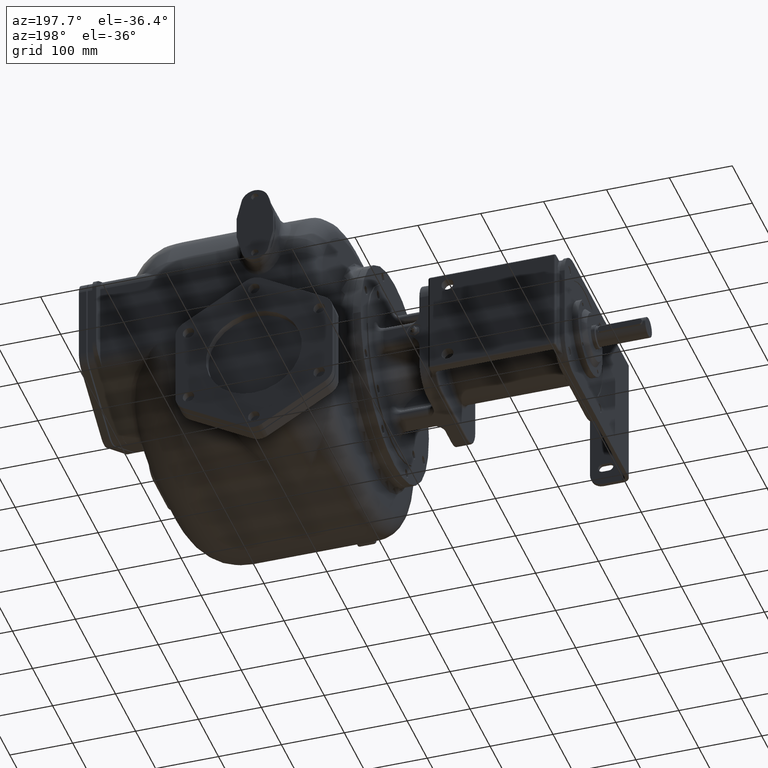
[diagram: clean part render]
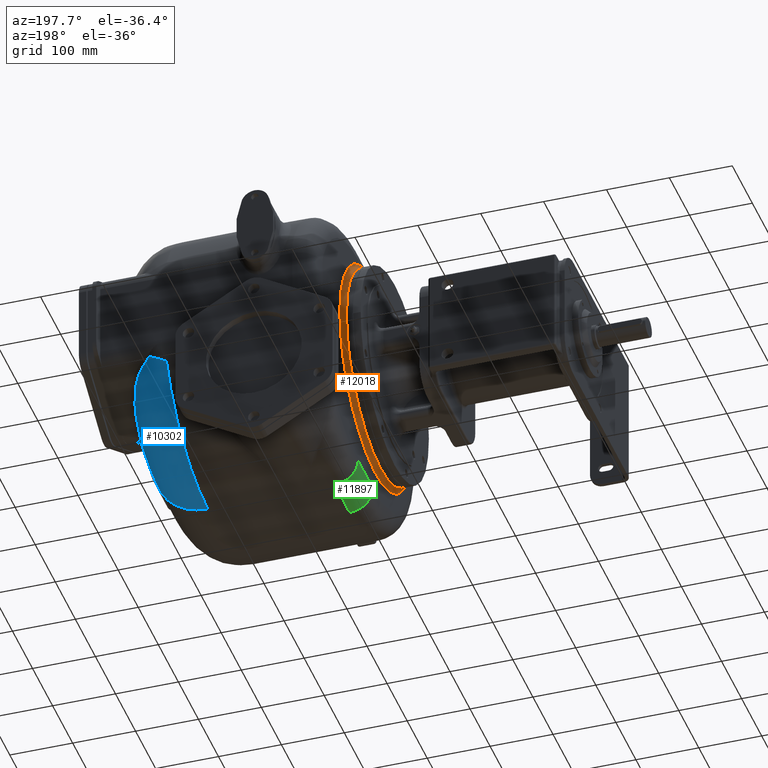
[diagram: same view with three faces highlighted in distinct colors, each labeled with its STEP entity id]
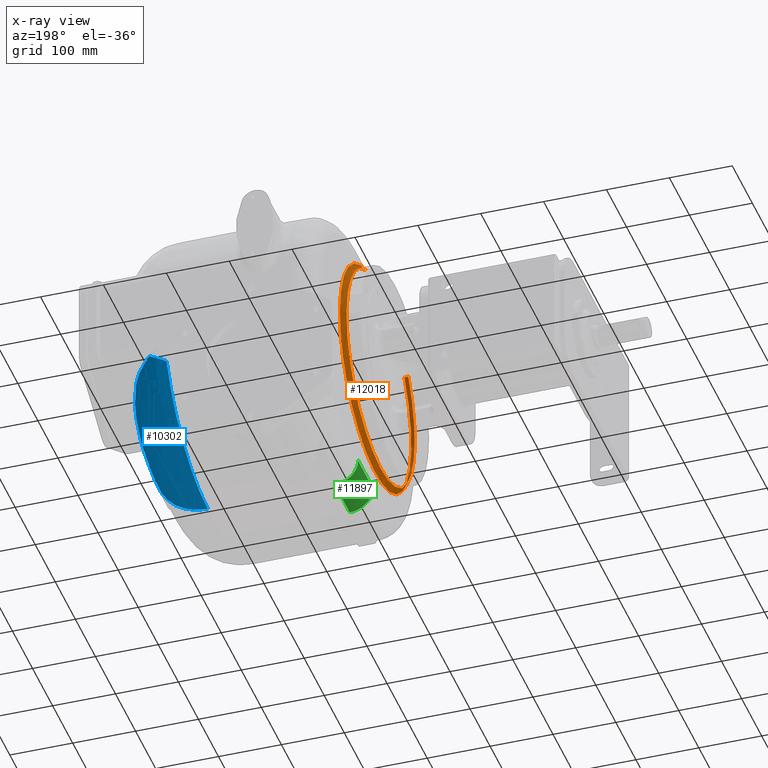
[diagram: x-ray of the same camera — body ghosted, the three highlighted faces saturated]
A machine part, auxiliary view with three faces highlighted in distinct colors.
The next image is the same camera in x-ray (body ghosted, the three faces saturated) — at least one of them is partly hidden behind the body in this view.
Their STEP definitions:

[orange] entity #12018 — the highlighted toroidal blend (fillet) surface has major radius 178 mm and minor (blend) radius 8 mm.
#3476=CARTESIAN_POINT('',(-8.699999958108E1,8.563733848388E1,1.041317387199E2));
#3536=CARTESIAN_POINT('',(-9.499996702928E1,8.563770566925E1,1.041316126528E2));
#3537=DIRECTION('',(3.031910061304E-7,5.850103059168E-1,8.110258577697E-1));
#3538=DIRECTION('',(9.999999988728E-1,-3.868475017217E-5,2.753030167005E-5));
#3539=AXIS2_PLACEMENT_3D('',#3536,#3537,#3538);
#3541=CARTESIAN_POINT('',(-8.7E1,2.3E2,0.E0));
#3542=DIRECTION('',(1.E0,0.E0,0.E0));
#3543=DIRECTION('',(0.E0,-8.110273238747E-1,5.850082733848E-1));
#3544=AXIS2_PLACEMENT_3D('',#3541,#3542,#3543);
#3546=CARTESIAN_POINT('',(-9.5E1,3.015192281836E2,1.630000000001E2));
#3547=DIRECTION('',(0.E0,9.157303370791E-1,-4.017934167616E-1));
#3548=DIRECTION('',(1.E0,-3.979039320257E-13,-9.130474154517E-13));
#3549=AXIS2_PLACEMENT_3D('',#3546,#3547,#3548);
#3578=CARTESIAN_POINT('',(-9.499999999988E1,2.983048766860E2,1.556741478146E2));
#3584=CARTESIAN_POINT('',(-9.5E1,2.3E2,0.E0));
#3585=DIRECTION('',(-1.E0,0.E0,0.E0));
#3586=DIRECTION('',(0.E0,4.017934167627E-1,9.157303370787E-1));
#3587=AXIS2_PLACEMENT_3D('',#3584,#3585,#3586);
#3626=CARTESIAN_POINT('',(-8.700001635781E1,3.015192281841E2,1.629999999998E2));
#3638=CARTESIAN_POINT('',(-9.5E1,2.3E2,0.E0));
#3639=DIRECTION('',(-1.E0,0.E0,0.E0));
#3640=DIRECTION('',(0.E0,0.E0,-1.E0));
#3641=AXIS2_PLACEMENT_3D('',#3638,#3639,#3640);
#7930=CARTESIAN_POINT('',(-9.5E1,2.3E2,-1.7E2));
#7931=CARTESIAN_POINT('',(-9.5E1,9.212560377855E1,9.945175145049E1));
#7932=VERTEX_POINT('',#7930);
#7933=VERTEX_POINT('',#7931);
#7934=VERTEX_POINT('',#3476);
#7939=VERTEX_POINT('',#3626);
#7940=VERTEX_POINT('',#3578);
#12003=CARTESIAN_POINT('',(-9.5E1,2.3E2,0.E0));
#12004=DIRECTION('',(1.E0,0.E0,0.E0));
#12005=DIRECTION('',(0.E0,3.866641914872E-1,9.222205826274E-1));
#12006=AXIS2_PLACEMENT_3D('',#12003,#12004,#12005);
#12007=TOROIDAL_SURFACE('',#12006,1.78E2,8.E0);
#12009=ORIENTED_EDGE('',*,*,#12008,.T.);
#12011=ORIENTED_EDGE('',*,*,#12010,.T.);
#12012=ORIENTED_EDGE('',*,*,#11994,.F.);
#12013=ORIENTED_EDGE('',*,*,#10870,.T.);
#12015=ORIENTED_EDGE('',*,*,#12014,.T.);
#12016=EDGE_LOOP('',(#12009,#12011,#12012,#12013,#12015));
#12017=FACE_OUTER_BOUND('',#12016,.F.);
#12018=ADVANCED_FACE('',(#12017),#12007,.F.);
#3540=CIRCLE('',#3539,7.999982928666E0);
#3545=CIRCLE('',#3544,1.78E2);
#3550=CIRCLE('',#3549,8.E0);
#3588=CIRCLE('',#3587,1.7E2);
#3642=CIRCLE('',#3641,1.7E2);
#10870=EDGE_CURVE('',#7934,#7939,#3545,.T.);
#11994=EDGE_CURVE('',#7934,#7933,#3540,.T.);
#12008=EDGE_CURVE('',#7940,#7932,#3588,.T.);
#12010=EDGE_CURVE('',#7932,#7933,#3642,.T.);
#12014=EDGE_CURVE('',#7939,#7940,#3550,.T.);

[blue] entity #10302 — the highlighted toroidal blend (fillet) surface has major radius 144 mm and minor (blend) radius 82 mm.
#949=CARTESIAN_POINT('',(2.34E2,3.17E2,-2.6E1));
#950=DIRECTION('',(1.E0,0.E0,0.E0));
#951=DIRECTION('',(0.E0,0.E0,-1.E0));
#952=AXIS2_PLACEMENT_3D('',#949,#950,#951);
#1452=CARTESIAN_POINT('',(1.911034203071E2,5.150546779042E2,-1.123892390667E2));
#1453=CARTESIAN_POINT('',(1.907547934305E2,5.153369368751E2,-1.122152137512E2));
#1454=CARTESIAN_POINT('',(1.900613327276E2,5.158943086068E2,-1.118594713650E2));
#1455=CARTESIAN_POINT('',(1.890314324568E2,5.167108349939E2,-1.113020240025E2));
#1456=CARTESIAN_POINT('',(1.880179980110E2,5.175039397866E2,-1.107242357911E2));
#1457=CARTESIAN_POINT('',(1.870253755134E2,5.182716165895E2,-1.101285429822E2));
#1458=CARTESIAN_POINT('',(1.860579938509E2,5.190117860961E2,-1.095180532042E2));
#1459=CARTESIAN_POINT('',(1.851216870185E2,5.197216392892E2,-1.088966709733E2));
#1460=CARTESIAN_POINT('',(1.842230061062E2,5.203978070389E2,-1.082697535603E2));
#1461=CARTESIAN_POINT('',(1.833664339873E2,5.210387322629E2,-1.076413711747E2));
#1462=CARTESIAN_POINT('',(1.825551290140E2,5.216436241125E2,-1.070155113200E2));
#1463=CARTESIAN_POINT('',(1.817924743787E2,5.222116321566E2,-1.063962360389E2));
#1464=CARTESIAN_POINT('',(1.810816870842E2,5.227416352610E2,-1.057886629182E2));
#1465=CARTESIAN_POINT('',(1.804226455881E2,5.232350451906E2,-1.051948903829E2));
#1466=CARTESIAN_POINT('',(1.798138542639E2,5.236937752875E2,-1.046165331089E2));
#1467=CARTESIAN_POINT('',(1.794405414320E2,5.239777910006E2,-1.042420073031E2));
#1468=CARTESIAN_POINT('',(1.792618785512E2,5.241144809531E2,-1.040579082588E2));
#1470=CARTESIAN_POINT('',(1.792618785512E2,5.241144809531E2,-1.040579082588E2));
#1471=CARTESIAN_POINT('',(1.787517320665E2,5.241914862596E2,-1.043635130473E2));
#1472=CARTESIAN_POINT('',(1.777277821546E2,5.243342060842E2,-1.049734544954E2));
#1473=CARTESIAN_POINT('',(1.761816751219E2,5.245145192246E2,-1.058838914955E2));
#1474=CARTESIAN_POINT('',(1.746249898997E2,5.246610710028E2,-1.067896430813E2));
#1475=CARTESIAN_POINT('',(1.730577133129E2,5.247737888686E2,-1.076905344702E2));
#1476=CARTESIAN_POINT('',(1.714800973792E2,5.248522838943E2,-1.085868392078E2));
#1477=CARTESIAN_POINT('',(1.698917777527E2,5.248966226593E2,-1.094780076198E2));
#1478=CARTESIAN_POINT('',(1.682936179634E2,5.249067093845E2,-1.103630434251E2));
#1479=CARTESIAN_POINT('',(1.666868971768E2,5.248825508555E2,-1.112406434245E2));
#1480=CARTESIAN_POINT('',(1.650728330836E2,5.248242104588E2,-1.121096165244E2));
#1481=CARTESIAN_POINT('',(1.634523749133E2,5.247318860166E2,-1.129687410973E2));
#1482=CARTESIAN_POINT('',(1.618267466800E2,5.246055158390E2,-1.138174593695E2));
#1483=CARTESIAN_POINT('',(1.601969536343E2,5.244450368605E2,-1.146554535801E2));
#1484=CARTESIAN_POINT('',(1.585634257832E2,5.242504895832E2,-1.154823690852E2));
#1485=CARTESIAN_POINT('',(1.569269542710E2,5.240216737506E2,-1.162983908194E2));
#1486=CARTESIAN_POINT('',(1.552871955703E2,5.237592691729E2,-1.171017033965E2));
#1487=CARTESIAN_POINT('',(1.536479999233E2,5.234607186314E2,-1.178979232298E2));
#1488=CARTESIAN_POINT('',(1.525477288527E2,5.232439583496E2,-1.184092460357E2));
#1489=CARTESIAN_POINT('',(1.52E2,5.231279916753E2,-1.186674217182E2));
#1491=CARTESIAN_POINT('',(1.52E2,3.17E2,-1.7E2));
#1492=DIRECTION('',(0.E0,1.E0,0.E0));
#1493=DIRECTION('',(1.E0,0.E0,0.E0));
#1494=AXIS2_PLACEMENT_3D('',#1491,#1492,#1493);
#1496=CARTESIAN_POINT('',(2.34E2,3.734511158425E2,-1.584736634975E2));
#1497=CARTESIAN_POINT('',(2.339999998491E2,3.741377915202E2,-1.588297339627E2));
#1498=CARTESIAN_POINT('',(2.339869782638E2,3.755051446110E2,-1.595394777049E2));
#1499=CARTESIAN_POINT('',(2.339282062689E2,3.775393281688E2,-1.605974496080E2));
#1500=CARTESIAN_POINT('',(2.338304936513E2,3.795491684463E2,-1.616448154016E2));
#1501=CARTESIAN_POINT('',(2.336945855773E2,3.815298183685E2,-1.626789472731E2));
#1502=CARTESIAN_POINT('',(2.335218088825E2,3.834747848028E2,-1.636963536544E2));
#1503=CARTESIAN_POINT('',(2.333134877750E2,3.853827974187E2,-1.646962396043E2));
#1504=CARTESIAN_POINT('',(2.330701788252E2,3.872587643589E2,-1.656810697184E2));
#1505=CARTESIAN_POINT('',(2.327924809935E2,3.891047733191E2,-1.666518333926E2));
#1506=CARTESIAN_POINT('',(2.324812205892E2,3.909210015338E2,-1.676085301212E2));
#1507=CARTESIAN_POINT('',(2.322517558308E2,3.921127360435E2,-1.682372898028E2));
#1508=CARTESIAN_POINT('',(2.321317186955E2,3.927035971021E2,-1.685492718343E2));
#1510=CARTESIAN_POINT('',(2.321317186955E2,3.927035971021E2,-1.685492718343E2));
#1511=CARTESIAN_POINT('',(2.320847529340E2,3.929347839690E2,-1.686713276440E2));
#1512=CARTESIAN_POINT('',(2.319894196390E2,3.934019271234E2,-1.689102320615E2));
#1513=CARTESIAN_POINT('',(2.318422372793E2,3.941175026136E2,-1.692528643492E2));
#1514=CARTESIAN_POINT('',(2.316912954952E2,3.948466709520E2,-1.695788244778E2));
#1515=CARTESIAN_POINT('',(2.315369415956E2,3.955885992362E2,-1.698874515471E2));
#1516=CARTESIAN_POINT('',(2.313795695069E2,3.963422984188E2,-1.701780777912E2));
#1517=CARTESIAN_POINT('',(2.312195945312E2,3.971067378199E2,-1.704500922528E2));
#1518=CARTESIAN_POINT('',(2.310574177245E2,3.978810090097E2,-1.707029923798E2));
#1519=CARTESIAN_POINT('',(2.308933801662E2,3.986645336148E2,-1.709364198541E2));
#1520=CARTESIAN_POINT('',(2.307278518718E2,3.994566480260E2,-1.711499949572E2));
#1521=CARTESIAN_POINT('',(2.305611858827E2,4.002567775875E2,-1.713434062877E2));
#1522=CARTESIAN_POINT('',(2.303937184975E2,4.010643841960E2,-1.715164194280E2));
#1523=CARTESIAN_POINT('',(2.302257981703E2,4.018788986993E2,-1.716687983307E2));
#1524=CARTESIAN_POINT('',(2.300577722812E2,4.026997663229E2,-1.718003279098E2));
#1525=CARTESIAN_POINT('',(2.298900168582E2,4.035263019064E2,-1.719107898885E2));
#1526=CARTESIAN_POINT('',(2.297229330882E2,4.043576960515E2,-1.719999828664E2));
#1527=CARTESIAN_POINT('',(2.295569181168E2,4.051931502820E2,-1.720677468586E2));
#1528=CARTESIAN_POINT('',(2.293923683595E2,4.060318577915E2,-1.721139573601E2));
#1529=CARTESIAN_POINT('',(2.292296827856E2,4.068729711500E2,-1.721385310183E2));
#1530=CARTESIAN_POINT('',(2.290692583980E2,4.077155975974E2,-1.721414419933E2));
#1531=CARTESIAN_POINT('',(2.289114853266E2,4.085588575468E2,-1.721226983427E2));
#1532=CARTESIAN_POINT('',(2.287567517817E2,4.094018425965E2,-1.720823491194E2));
#1533=CARTESIAN_POINT('',(2.286054064887E2,4.102438183190E2,-1.720204695154E2));
#1534=CARTESIAN_POINT('',(2.284577795582E2,4.110841175242E2,-1.719371495790E2));
#1535=CARTESIAN_POINT('',(2.283141966122E2,4.119220595162E2,-1.718324984317E2));
#1536=CARTESIAN_POINT('',(2.281749717340E2,4.127569808858E2,-1.717066437089E2));
#1537=CARTESIAN_POINT('',(2.280404209965E2,4.135880397122E2,-1.715598185565E2));
#1538=CARTESIAN_POINT('',(2.279108482486E2,4.144144018293E2,-1.713922846134E2));
#1539=CARTESIAN_POINT('',(2.277865452407E2,4.152352257624E2,-1.712043386257E2));
#1540=CARTESIAN_POINT('',(2.276677742898E2,4.160497665505E2,-1.709962920010E2));
#1541=CARTESIAN_POINT('',(2.275547010383E2,4.168578903523E2,-1.707683006393E2));
#1542=CARTESIAN_POINT('',(2.274474967552E2,4.176594146182E2,-1.705205012615E2));
#1543=CARTESIAN_POINT('',(2.273463400691E2,4.184541557948E2,-1.702529786942E2));
#1544=CARTESIAN_POINT('',(2.272513696576E2,4.192419818050E2,-1.699658629092E2));
#1545=CARTESIAN_POINT('',(2.271626798756E2,4.200227830790E2,-1.696593588617E2));
#1546=CARTESIAN_POINT('',(2.270803703646E2,4.207966177790E2,-1.693334972970E2));
#1547=CARTESIAN_POINT('',(2.270046515150E2,4.215625492497E2,-1.689886845425E2));
#1548=CARTESIAN_POINT('',(2.269357868834E2,4.223188721924E2,-1.686257411652E2));
#1549=CARTESIAN_POINT('',(2.268739834960E2,4.230640628850E2,-1.682455249398E2));
#1550=CARTESIAN_POINT('',(2.268194052051E2,4.237967693638E2,-1.678488955336E2));
#1551=CARTESIAN_POINT('',(2.267879365092E2,4.242756380361E2,-1.675744060848E2));
#1552=CARTESIAN_POINT('',(2.267734300296E2,4.245127567138E2,-1.674346437893E2));
#1554=CARTESIAN_POINT('',(2.267734300296E2,4.245127567138E2,-1.674346437893E2));
#1555=CARTESIAN_POINT('',(2.267197708373E2,4.253898294100E2,-1.669176634342E2));
#1556=CARTESIAN_POINT('',(2.266049873097E2,4.271360548677E2,-1.658869739511E2));
#1557=CARTESIAN_POINT('',(2.264100180271E2,4.297340699468E2,-1.643495241101E2));
#1558=CARTESIAN_POINT('',(2.261921601028E2,4.323082922284E2,-1.628222905460E2));
#1559=CARTESIAN_POINT('',(2.259512436159E2,4.348575461334E2,-1.613061370587E2));
#1560=CARTESIAN_POINT('',(2.256871032386E2,4.373803167969E2,-1.598022022708E2));
#1561=CARTESIAN_POINT('',(2.253996061440E2,4.398751560491E2,-1.583115433357E2));
#1562=CARTESIAN_POINT('',(2.250886605560E2,4.423405834043E2,-1.568352214466E2));
#1563=CARTESIAN_POINT('',(2.247541123738E2,4.447756468829E2,-1.553740592484E2));
#1564=CARTESIAN_POINT('',(2.243958456366E2,4.471793816410E2,-1.539288515777E2));
#1565=CARTESIAN_POINT('',(2.240138091832E2,4.495507445796E2,-1.525003960903E2));
#1566=CARTESIAN_POINT('',(2.236079328925E2,4.518889693469E2,-1.510893673226E2));
#1567=CARTESIAN_POINT('',(2.231781170151E2,4.541935920340E2,-1.496962792820E2));
#1568=CARTESIAN_POINT('',(2.227243179656E2,4.564640828847E2,-1.483216436349E2));
#1569=CARTESIAN_POINT('',(2.222465568345E2,4.586998668431E2,-1.469659563960E2));
#1570=CARTESIAN_POINT('',(2.217448210207E2,4.609006203833E2,-1.456296114422E2));
#1571=CARTESIAN_POINT('',(2.212190849652E2,4.630661948495E2,-1.443128988400E2));
#1572=CARTESIAN_POINT('',(2.206693730044E2,4.651964012737E2,-1.430160962175E2));
#1573=CARTESIAN_POINT('',(2.200957626034E2,4.672910311237E2,-1.417394522211E2));
#1574=CARTESIAN_POINT('',(2.194983164654E2,4.693499943940E2,-1.404831775407E2));
#1575=CARTESIAN_POINT('',(2.188770835643E2,4.713733173565E2,-1.392474202729E2));
#1576=CARTESIAN_POINT('',(2.182321522447E2,4.733610088980E2,-1.380323047686E2));
#1577=CARTESIAN_POINT('',(2.175636513903E2,4.753130687505E2,-1.368379258889E2));
#1578=CARTESIAN_POINT('',(2.168716901329E2,4.772295850195E2,-1.356643492370E2));
#1579=CARTESIAN_POINT('',(2.161563535802E2,4.791107393587E2,-1.345115887470E2));
#1580=CARTESIAN_POINT('',(2.154177547384E2,4.809566951079E2,-1.333796402327E2));
#1581=CARTESIAN_POINT('',(2.146560086459E2,4.827676571899E2,-1.322684461891E2));
#1582=CARTESIAN_POINT('',(2.138713031130E2,4.845436471547E2,-1.311780898060E2));
#1583=CARTESIAN_POINT('',(2.130638746471E2,4.862846322409E2,-1.301086783372E2));
#1584=CARTESIAN_POINT('',(2.122339861843E2,4.879905912459E2,-1.290602877700E2));
#1585=CARTESIAN_POINT('',(2.113818764879E2,4.896616096020E2,-1.280329204055E2));
#1586=CARTESIAN_POINT('',(2.105073105700E2,4.912986339213E2,-1.270260679569E2));
#1587=CARTESIAN_POINT('',(2.096100983321E2,4.929024154565E2,-1.260393223328E2));
#1588=CARTESIAN_POINT('',(2.086897032108E2,4.944741528237E2,-1.250719828210E2));
#1589=CARTESIAN_POINT('',(2.077474954452E2,4.960117677826E2,-1.241253792331E2));
#1590=CARTESIAN_POINT('',(2.067856413205E2,4.975123700484E2,-1.232013363974E2));
#1591=CARTESIAN_POINT('',(2.058064292361E2,4.989734180611E2,-1.223014511159E2));
#1592=CARTESIAN_POINT('',(2.048123004226E2,5.003926360677E2,-1.214271612316E2));
#1593=CARTESIAN_POINT('',(2.038056900834E2,5.017681946665E2,-1.205796290768E2));
#1594=CARTESIAN_POINT('',(2.027896463488E2,5.030978998817E2,-1.197602319929E2));
#1595=CARTESIAN_POINT('',(2.017653786705E2,5.043823105869E2,-1.189686503397E2));
#1596=CARTESIAN_POINT('',(2.007326739865E2,5.056236642744E2,-1.182035286001E2));
#1597=CARTESIAN_POINT('',(1.996913452755E2,5.068239118488E2,-1.174636825692E2));
#1598=CARTESIAN_POINT('',(1.986417884067E2,5.079841699541E2,-1.167484362630E2));
#1599=CARTESIAN_POINT('',(1.975846323181E2,5.091052379684E2,-1.160573101100E2));
#1600=CARTESIAN_POINT('',(1.965203662872E2,5.101880219627E2,-1.153897577027E2));
#1601=CARTESIAN_POINT('',(1.954493953974E2,5.112334546658E2,-1.147452138308E2));
#1602=CARTESIAN_POINT('',(1.943720424583E2,5.122424827936E2,-1.141231071626E2));
#1603=CARTESIAN_POINT('',(1.932885594352E2,5.132160511732E2,-1.135228569572E2));
#1604=CARTESIAN_POINT('',(1.921993102700E2,5.141549507062E2,-1.129439709838E2));
#1605=CARTESIAN_POINT('',(1.914692388592E2,5.147584986433E2,-1.125718480562E2));
#1606=CARTESIAN_POINT('',(1.911034203071E2,5.150546779042E2,-1.123892390667E2));
#1751=CARTESIAN_POINT('',(1.792618785512E2,5.241144809531E2,-1.040579082588E2));
#3128=CARTESIAN_POINT('',(1.52E2,3.17E2,-2.6E1));
#3129=DIRECTION('',(1.E0,0.E0,0.E0));
#3130=DIRECTION('',(0.E0,0.E0,-1.E0));
#3131=AXIS2_PLACEMENT_3D('',#3128,#3129,#3130);
#7808=CARTESIAN_POINT('',(2.34E2,3.17E2,-1.7E2));
#7810=VERTEX_POINT('',#7808);
#7811=CARTESIAN_POINT('',(1.52E2,3.169999999997E2,-2.52E2));
#7812=VERTEX_POINT('',#7811);
#7831=CARTESIAN_POINT('',(1.52E2,5.231279916753E2,-1.186674217182E2));
#7832=VERTEX_POINT('',#7831);
#8020=VERTEX_POINT('',#1751);
#8023=VERTEX_POINT('',#1452);
#8025=VERTEX_POINT('',#1554);
#8027=VERTEX_POINT('',#1510);
#8029=VERTEX_POINT('',#1496);
#10281=CARTESIAN_POINT('',(1.52E2,3.17E2,-2.6E1));
#10282=DIRECTION('',(-1.E0,0.E0,0.E0));
#10283=DIRECTION('',(0.E0,-7.473509951693E-3,-9.999720729345E-1));
#10284=AXIS2_PLACEMENT_3D('',#10281,#10282,#10283);
#10285=TOROIDAL_SURFACE('',#10284,1.44E2,8.2E1);
#10287=ORIENTED_EDGE('',*,*,#10286,.T.);
#10289=ORIENTED_EDGE('',*,*,#10288,.T.);
#10291=ORIENTED_EDGE('',*,*,#10290,.F.);
#10293=ORIENTED_EDGE('',*,*,#10292,.F.);
#10294=ORIENTED_EDGE('',*,*,#9528,.T.);
#10295=ORIENTED_EDGE('',*,*,#10272,.T.);
#10297=ORIENTED_EDGE('',*,*,#10296,.T.);
#10299=ORIENTED_EDGE('',*,*,#10298,.T.);
#10300=EDGE_LOOP('',(#10287,#10289,#10291,#10293,#10294,#10295,#10297,#10299));
#10301=FACE_OUTER_BOUND('',#10300,.F.);
#10302=ADVANCED_FACE('',(#10301),#10285,.T.);
#953=CIRCLE('',#952,1.44E2);
#1469=B_SPLINE_CURVE_WITH_KNOTS('',3,(#1452,#1453,#1454,#1455,#1456,#1457,#1458,
#1459,#1460,#1461,#1462,#1463,#1464,#1465,#1466,#1467,#1468),.UNSPECIFIED.,.F.,
.F.,(4,1,1,1,1,1,1,1,1,1,1,1,1,1,4),(0.E0,7.142857142857E-2,1.428571428571E-1,
2.142857142857E-1,2.857142857143E-1,3.571428571429E-1,4.285714285714E-1,5.E-1,
5.714285714286E-1,6.428571428571E-1,7.142857142857E-1,7.857142857143E-1,
8.571428571429E-1,9.285714285714E-1,1.E0),.UNSPECIFIED.);
#1490=B_SPLINE_CURVE_WITH_KNOTS('',3,(#1470,#1471,#1472,#1473,#1474,#1475,#1476,
#1477,#1478,#1479,#1480,#1481,#1482,#1483,#1484,#1485,#1486,#1487,#1488,#1489),
.UNSPECIFIED.,.F.,.F.,(4,1,1,1,1,1,1,1,1,1,1,1,1,1,1,1,1,4),(0.E0,
5.882352941176E-2,1.176470588235E-1,1.764705882353E-1,2.352941176471E-1,
2.941176470588E-1,3.529411764706E-1,4.117647058824E-1,4.705882352941E-1,
5.294117647059E-1,5.882352941176E-1,6.470588235294E-1,7.058823529412E-1,
7.647058823529E-1,8.235294117647E-1,8.823529411765E-1,9.411764705882E-1,1.E0),
.UNSPECIFIED.);
#1495=CIRCLE('',#1494,8.2E1);
#1509=B_SPLINE_CURVE_WITH_KNOTS('',3,(#1496,#1497,#1498,#1499,#1500,#1501,#1502,
#1503,#1504,#1505,#1506,#1507,#1508),.UNSPECIFIED.,.F.,.F.,(4,1,1,1,1,1,1,1,1,1,
4),(0.E0,1.E-1,2.E-1,3.E-1,4.E-1,5.E-1,6.E-1,7.E-1,8.E-1,9.E-1,1.E0),
.UNSPECIFIED.);
#1553=B_SPLINE_CURVE_WITH_KNOTS('',3,(#1510,#1511,#1512,#1513,#1514,#1515,#1516,
#1517,#1518,#1519,#1520,#1521,#1522,#1523,#1524,#1525,#1526,#1527,#1528,#1529,
#1530,#1531,#1532,#1533,#1534,#1535,#1536,#1537,#1538,#1539,#1540,#1541,#1542,
#1543,#1544,#1545,#1546,#1547,#1548,#1549,#1550,#1551,#1552),.UNSPECIFIED.,.F.,
.F.,(4,1,1,1,1,1,1,1,1,1,1,1,1,1,1,1,1,1,1,1,1,1,1,1,1,1,1,1,1,1,1,1,1,1,1,1,1,
1,1,1,4),(0.E0,2.5E-2,5.E-2,7.5E-2,1.E-1,1.25E-1,1.5E-1,1.75E-1,2.E-1,2.25E-1,
2.5E-1,2.75E-1,3.E-1,3.25E-1,3.5E-1,3.75E-1,4.E-1,4.25E-1,4.5E-1,4.75E-1,5.E-1,
5.25E-1,5.5E-1,5.75E-1,6.E-1,6.25E-1,6.5E-1,6.75E-1,7.E-1,7.25E-1,7.5E-1,
7.75E-1,8.E-1,8.25E-1,8.5E-1,8.75E-1,9.E-1,9.25E-1,9.5E-1,9.75E-1,1.E0),
.UNSPECIFIED.);
#1607=B_SPLINE_CURVE_WITH_KNOTS('',3,(#1554,#1555,#1556,#1557,#1558,#1559,#1560,
#1561,#1562,#1563,#1564,#1565,#1566,#1567,#1568,#1569,#1570,#1571,#1572,#1573,
#1574,#1575,#1576,#1577,#1578,#1579,#1580,#1581,#1582,#1583,#1584,#1585,#1586,
#1587,#1588,#1589,#1590,#1591,#1592,#1593,#1594,#1595,#1596,#1597,#1598,#1599,
#1600,#1601,#1602,#1603,#1604,#1605,#1606),.UNSPECIFIED.,.F.,.F.,(4,1,1,1,1,1,1,
1,1,1,1,1,1,1,1,1,1,1,1,1,1,1,1,1,1,1,1,1,1,1,1,1,1,1,1,1,1,1,1,1,1,1,1,1,1,1,1,
1,1,1,4),(0.E0,2.E-2,4.E-2,6.E-2,8.E-2,1.E-1,1.2E-1,1.4E-1,1.6E-1,1.8E-1,2.E-1,
2.2E-1,2.4E-1,2.6E-1,2.8E-1,3.E-1,3.2E-1,3.4E-1,3.6E-1,3.8E-1,4.E-1,4.2E-1,
4.4E-1,4.6E-1,4.8E-1,5.E-1,5.2E-1,5.4E-1,5.6E-1,5.8E-1,6.E-1,6.2E-1,6.4E-1,
6.6E-1,6.8E-1,7.E-1,7.2E-1,7.4E-1,7.6E-1,7.8E-1,8.E-1,8.2E-1,8.4E-1,8.6E-1,
8.8E-1,9.E-1,9.2E-1,9.4E-1,9.6E-1,9.8E-1,1.E0),.UNSPECIFIED.);
#3132=CIRCLE('',#3131,2.26E2);
#9528=EDGE_CURVE('',#7810,#8029,#953,.T.);
#10272=EDGE_CURVE('',#8029,#8027,#1509,.T.);
#10286=EDGE_CURVE('',#8023,#8020,#1469,.T.);
#10288=EDGE_CURVE('',#8020,#7832,#1490,.T.);
#10290=EDGE_CURVE('',#7812,#7832,#3132,.T.);
#10292=EDGE_CURVE('',#7810,#7812,#1495,.T.);
#10296=EDGE_CURVE('',#8027,#8025,#1553,.T.);
#10298=EDGE_CURVE('',#8025,#8023,#1607,.T.);

[green] entity #11897 — the highlighted cylindrical surface (edge-blend (fillet) strip) has radius 37 mm, axis along (0, -1, 0).
#2053=DIRECTION('',(0.E0,-1.E0,0.E0));
#2054=VECTOR('',#2053,7.4E1);
#2055=CARTESIAN_POINT('',(-8.7E1,3.17E2,-2.15E2));
#2056=LINE('',#2055,#2054);
#3356=DIRECTION('',(0.E0,-1.E0,0.E0));
#3357=VECTOR('',#3356,7.399999999980E1);
#3358=CARTESIAN_POINT('',(-5.E1,3.169999999998E2,-2.52E2));
#3359=LINE('',#3358,#3357);
#3466=CARTESIAN_POINT('',(-5.E1,3.17E2,-2.15E2));
#3467=DIRECTION('',(0.E0,-1.E0,0.E0));
#3468=DIRECTION('',(-1.E0,0.E0,0.E0));
#3469=AXIS2_PLACEMENT_3D('',#3466,#3467,#3468);
#3471=CARTESIAN_POINT('',(-5.E1,2.43E2,-2.15E2));
#3472=DIRECTION('',(0.E0,-1.E0,0.E0));
#3473=DIRECTION('',(-1.E0,0.E0,0.E0));
#3474=AXIS2_PLACEMENT_3D('',#3471,#3472,#3473);
#7715=CARTESIAN_POINT('',(-5.E1,2.43E2,-2.52E2));
#7717=VERTEX_POINT('',#7715);
#7795=CARTESIAN_POINT('',(-8.7E1,3.17E2,-2.15E2));
#7796=CARTESIAN_POINT('',(-8.7E1,2.43E2,-2.15E2));
#7797=VERTEX_POINT('',#7795);
#7798=VERTEX_POINT('',#7796);
#7799=CARTESIAN_POINT('',(-5.E1,3.169999999998E2,-2.52E2));
#7800=VERTEX_POINT('',#7799);
#11885=CARTESIAN_POINT('',(-5.E1,3.181935702965E2,-2.15E2));
#11886=DIRECTION('',(0.E0,-1.E0,0.E0));
#11887=DIRECTION('',(-1.E0,0.E0,0.E0));
#11888=AXIS2_PLACEMENT_3D('',#11885,#11886,#11887);
#11889=CYLINDRICAL_SURFACE('',#11888,3.7E1);
#11890=ORIENTED_EDGE('',*,*,#10876,.T.);
#11892=ORIENTED_EDGE('',*,*,#11891,.T.);
#11893=ORIENTED_EDGE('',*,*,#11733,.F.);
#11894=ORIENTED_EDGE('',*,*,#11879,.F.);
#11895=EDGE_LOOP('',(#11890,#11892,#11893,#11894));
#11896=FACE_OUTER_BOUND('',#11895,.F.);
#11897=ADVANCED_FACE('',(#11896),#11889,.T.);
#3470=CIRCLE('',#3469,3.7E1);
#3475=CIRCLE('',#3474,3.7E1);
#10876=EDGE_CURVE('',#7797,#7798,#2056,.T.);
#11733=EDGE_CURVE('',#7800,#7717,#3359,.T.);
#11879=EDGE_CURVE('',#7797,#7800,#3470,.T.);
#11891=EDGE_CURVE('',#7798,#7717,#3475,.T.);